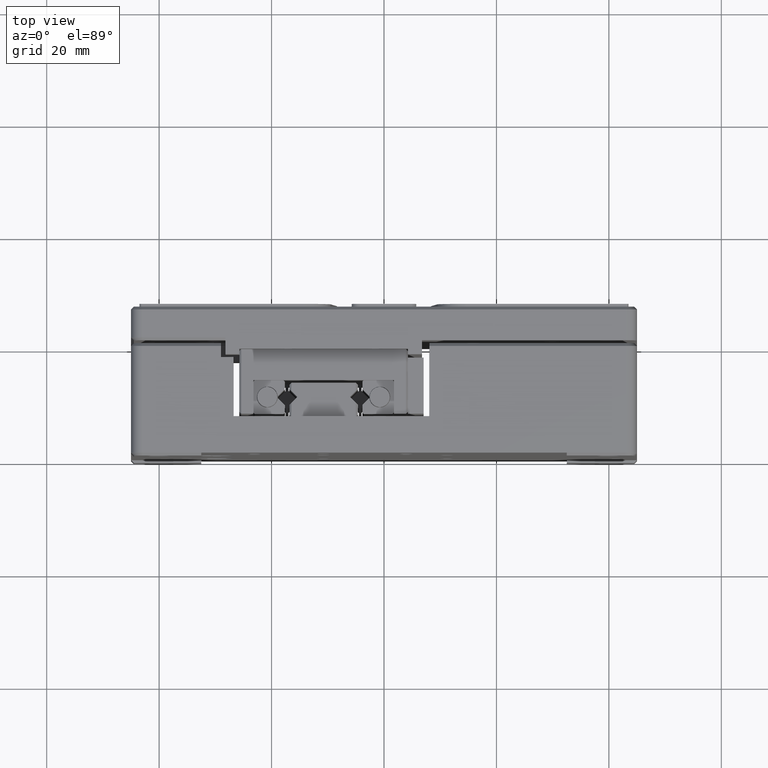
[diagram: clean part render]
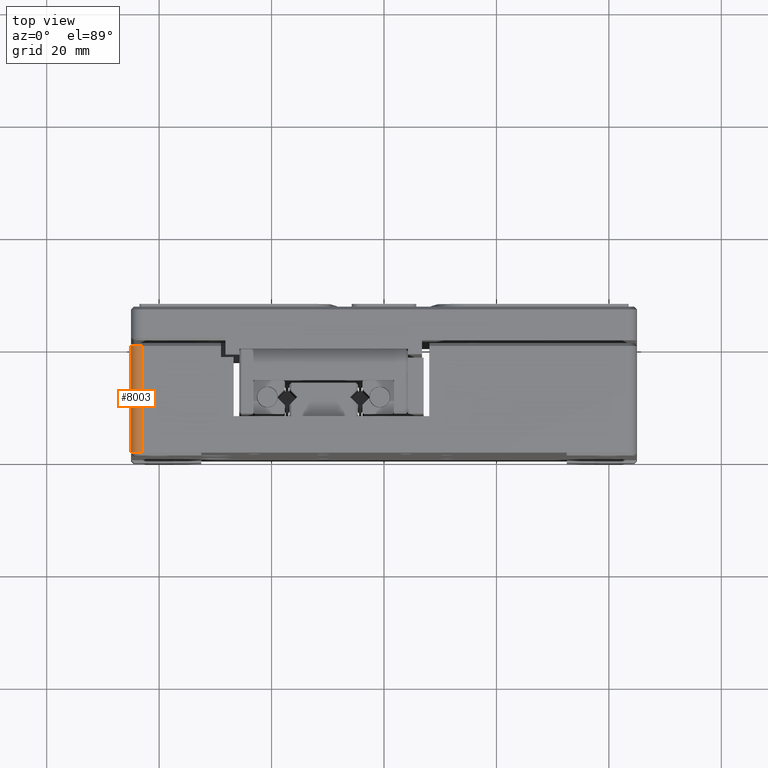
[diagram: same view with one face highlighted and labeled with its STEP entity id]
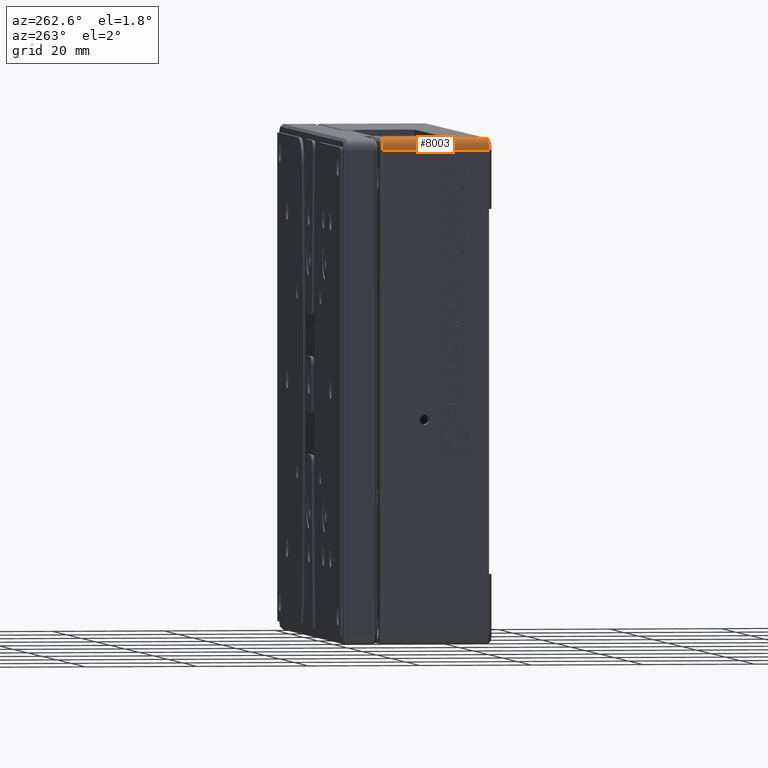
[diagram: same view with one face highlighted and labeled with its STEP entity id]
A machine part, top view. The second image highlights one B-rep face of the part: STEP entity #8003.
A second angle (auxiliary view) of the same face is appended — the face is thin or edge-on in the first view.
In plain terms, the highlighted cylindrical surface (edge-blend (fillet) strip) has radius 2 mm, axis along (0, -1, 0).
Its self-contained STEP definition (entity closure, byte-faithful):
#344 = DIRECTION ( 'NONE',  ( 0.0000000000000000000, 0.0000000000000000000, 1.000000000000000000 ) ) ;
#837 = CARTESIAN_POINT ( 'NONE',  ( -45.00000000000000000, 0.0000000000000000000, 43.00000000000000000 ) ) ;
#4914 = VERTEX_POINT ( 'NONE', #17339 ) ;
#5734 = DIRECTION ( 'NONE',  ( 0.0000000000000000000, -1.000000000000000000, 0.0000000000000000000 ) ) ;
#7023 = CARTESIAN_POINT ( 'NONE',  ( -43.00000000000000000, 0.0000000000000000000, 45.00000000000000000 ) ) ;
#7149 = CIRCLE ( 'NONE', #33092, 2.000000000000001800 ) ;
#7297 = ORIENTED_EDGE ( 'NONE', *, *, #23648, .F. ) ;
#7506 = VERTEX_POINT ( 'NONE', #21206 ) ;
#8003 = ADVANCED_FACE ( 'NONE', ( #18243 ), #17261, .T. ) ;
#8088 = CARTESIAN_POINT ( 'NONE',  ( -45.00000000000000000, -19.50000109624170400, 43.00000000000001400 ) ) ;
#9530 = DIRECTION ( 'NONE',  ( 0.0000000000000000000, -1.000000000000000000, 0.0000000000000000000 ) ) ;
#11978 = DIRECTION ( 'NONE',  ( 0.0000000000000000000, 0.0000000000000000000, -1.000000000000000000 ) ) ;
#13223 = EDGE_CURVE ( 'NONE', #26905, #20372, #32148, .T. ) ;
#13915 = VECTOR ( 'NONE', #25607, 1000.000000000000000 ) ;
#15071 = CARTESIAN_POINT ( 'NONE',  ( -43.00000000000000000, 26.07200000000000300, 43.00000000000000000 ) ) ;
#15142 = LINE ( 'NONE', #837, #29671 ) ;
#15870 = LINE ( 'NONE', #7023, #13915 ) ;
#16980 = ORIENTED_EDGE ( 'NONE', *, *, #13223, .T. ) ;
#17261 = CYLINDRICAL_SURFACE ( 'NONE', #29523, 2.000000000000001800 ) ;
#17339 = CARTESIAN_POINT ( 'NONE',  ( -43.00000000000001400, -0.4999989037452145000, 45.00000000000000000 ) ) ;
#18243 = FACE_OUTER_BOUND ( 'NONE', #32498, .T. ) ;
#18847 = DIRECTION ( 'NONE',  ( 0.0000000000000000000, 1.000000000000000000, -0.0000000000000000000 ) ) ;
#19439 = EDGE_CURVE ( 'NONE', #26905, #7506, #15142, .T. ) ;
#20372 = VERTEX_POINT ( 'NONE', #26029 ) ;
#21206 = CARTESIAN_POINT ( 'NONE',  ( -45.00000000000000000, -0.4999989037452128900, 43.00000000000000000 ) ) ;
#23648 = EDGE_CURVE ( 'NONE', #4914, #20372, #15870, .T. ) ;
#24732 = AXIS2_PLACEMENT_3D ( 'NONE', #37409, #18847, #344 ) ;
#25607 = DIRECTION ( 'NONE',  ( 0.0000000000000000000, -1.000000000000000000, -0.0000000000000000000 ) ) ;
#25623 = DIRECTION ( 'NONE',  ( 0.0000000000000000000, 1.000000000000000000, -0.0000000000000000000 ) ) ;
#26029 = CARTESIAN_POINT ( 'NONE',  ( -43.00000000000001400, -19.50000109624170400, 45.00000000000000000 ) ) ;
#26905 = VERTEX_POINT ( 'NONE', #8088 ) ;
#28088 = CARTESIAN_POINT ( 'NONE',  ( -43.00000000000000000, -0.4999978074904254900, 43.00000000000000000 ) ) ;
#28262 = ORIENTED_EDGE ( 'NONE', *, *, #19439, .F. ) ;
#29523 = AXIS2_PLACEMENT_3D ( 'NONE', #15071, #5734, #11978 ) ;
#29671 = VECTOR ( 'NONE', #25623, 1000.000000000000000 ) ;
#31197 = DIRECTION ( 'NONE',  ( 0.0000000000000000000, 0.0000000000000000000, -1.000000000000000000 ) ) ;
#32148 = CIRCLE ( 'NONE', #24732, 2.000000000000001800 ) ;
#32498 = EDGE_LOOP ( 'NONE', ( #7297, #39912, #28262, #16980 ) ) ;
#33092 = AXIS2_PLACEMENT_3D ( 'NONE', #28088, #9530, #31197 ) ;
#35505 = EDGE_CURVE ( 'NONE', #4914, #7506, #7149, .T. ) ;
#37409 = CARTESIAN_POINT ( 'NONE',  ( -43.00000000000000000, -19.50000219248341100, 43.00000000000000000 ) ) ;
#39912 = ORIENTED_EDGE ( 'NONE', *, *, #35505, .T. ) ;